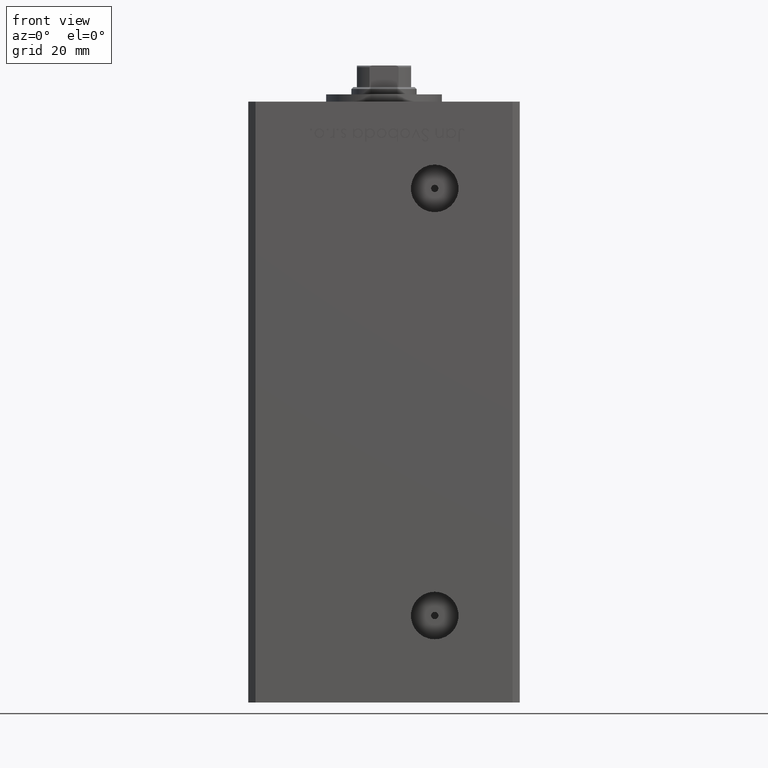
[diagram: clean part render]
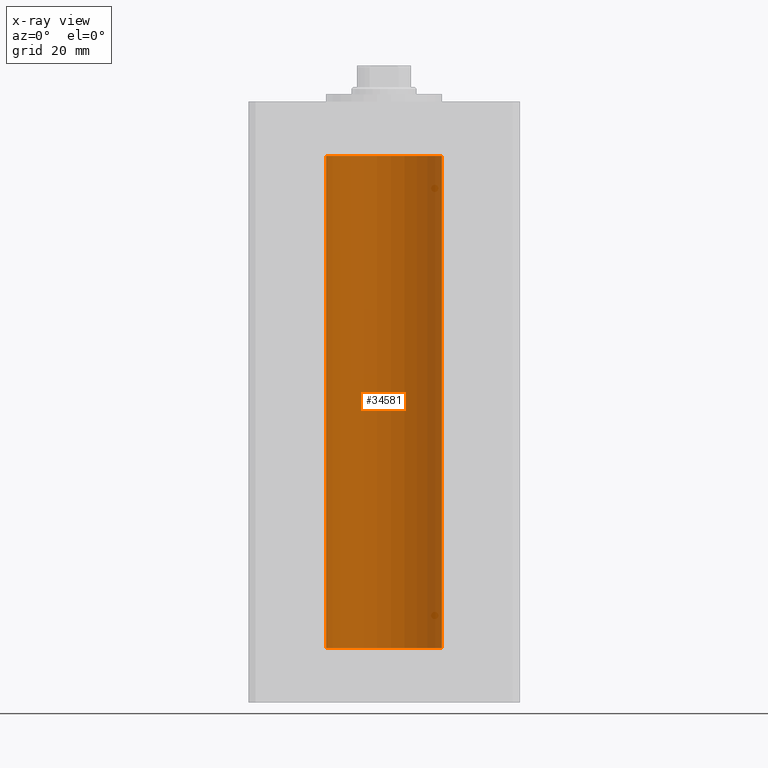
[diagram: x-ray — body ghosted, one internal face saturated and labeled with its STEP entity id]
A machine part, front view, then the same camera in x-ray: the body is ghosted and one INTERNAL B-rep face — a face not visible from any outside direction — is saturated and labeled: STEP entity #34581.
In plain terms, the highlighted cylindrical surface (partial cylindrical patch) has radius 16 mm, axis along (-0, -0, -1).
Its self-contained STEP definition (entity closure, byte-faithful):
#349 = FACE_OUTER_BOUND ( 'NONE', #45470, .T. ) ;
#838 = VERTEX_POINT ( 'NONE', #36487 ) ;
#3078 = LINE ( 'NONE', #26313, #14180 ) ;
#3507 = ORIENTED_EDGE ( 'NONE', *, *, #51479, .F. ) ;
#5869 = ORIENTED_EDGE ( 'NONE', *, *, #31103, .F. ) ;
#6196 = AXIS2_PLACEMENT_3D ( 'NONE', #30985, #48111, #44156 ) ;
#6739 = CARTESIAN_POINT ( 'NONE',  ( 16.00000000000000000, 1.959434878635765131E-15, 136.0000000000000000 ) ) ;
#7136 = CARTESIAN_POINT ( 'NONE',  ( -16.00000000000000000, 0.000000000000000000, 136.0000000000000000 ) ) ;
#9287 = EDGE_CURVE ( 'NONE', #838, #9871, #15310, .T. ) ;
#9871 = VERTEX_POINT ( 'NONE', #16985 ) ;
#12515 = ORIENTED_EDGE ( 'NONE', *, *, #9287, .T. ) ;
#14180 = VECTOR ( 'NONE', #46635, 1000.000000000000000 ) ;
#14366 = VERTEX_POINT ( 'NONE', #6739 ) ;
#15310 = LINE ( 'NONE', #7136, #47034 ) ;
#16985 = CARTESIAN_POINT ( 'NONE',  ( -16.00000000000000000, 0.000000000000000000, 0.000000000000000000 ) ) ;
#17214 = CYLINDRICAL_SURFACE ( 'NONE', #29489, 16.00000000000000000 ) ;
#18844 = CIRCLE ( 'NONE', #6196, 16.00000000000000000 ) ;
#19945 = AXIS2_PLACEMENT_3D ( 'NONE', #26936, #50699, #38045 ) ;
#20401 = DIRECTION ( 'NONE',  ( -1.000000000000000000, 0.000000000000000000, 0.000000000000000000 ) ) ;
#23001 = EDGE_CURVE ( 'NONE', #14366, #838, #52012, .T. ) ;
#26313 = CARTESIAN_POINT ( 'NONE',  ( 16.00000000000000000, 1.959434878635765131E-15, 136.0000000000000000 ) ) ;
#26936 = CARTESIAN_POINT ( 'NONE',  ( 0.000000000000000000, 0.000000000000000000, 136.0000000000000000 ) ) ;
#27647 = VERTEX_POINT ( 'NONE', #35946 ) ;
#28284 = ORIENTED_EDGE ( 'NONE', *, *, #23001, .T. ) ;
#29489 = AXIS2_PLACEMENT_3D ( 'NONE', #32544, #41249, #20401 ) ;
#30985 = CARTESIAN_POINT ( 'NONE',  ( 0.000000000000000000, 0.000000000000000000, 0.000000000000000000 ) ) ;
#31103 = EDGE_CURVE ( 'NONE', #14366, #27647, #3078, .T. ) ;
#31672 = DIRECTION ( 'NONE',  ( -0.000000000000000000, -0.000000000000000000, -1.000000000000000000 ) ) ;
#32544 = CARTESIAN_POINT ( 'NONE',  ( 0.000000000000000000, 0.000000000000000000, 136.0000000000000000 ) ) ;
#34581 = ADVANCED_FACE ( 'NONE', ( #349 ), #17214, .F. ) ;
#35946 = CARTESIAN_POINT ( 'NONE',  ( 16.00000000000000000, 1.959434878635765131E-15, 0.000000000000000000 ) ) ;
#36487 = CARTESIAN_POINT ( 'NONE',  ( -16.00000000000000000, 0.000000000000000000, 136.0000000000000000 ) ) ;
#38045 = DIRECTION ( 'NONE',  ( 1.000000000000000000, 0.000000000000000000, 0.000000000000000000 ) ) ;
#41249 = DIRECTION ( 'NONE',  ( -0.000000000000000000, -0.000000000000000000, -1.000000000000000000 ) ) ;
#44156 = DIRECTION ( 'NONE',  ( 1.000000000000000000, 0.000000000000000000, 0.000000000000000000 ) ) ;
#45470 = EDGE_LOOP ( 'NONE', ( #5869, #28284, #12515, #3507 ) ) ;
#46635 = DIRECTION ( 'NONE',  ( -0.000000000000000000, -0.000000000000000000, -1.000000000000000000 ) ) ;
#47034 = VECTOR ( 'NONE', #31672, 1000.000000000000000 ) ;
#48111 = DIRECTION ( 'NONE',  ( -0.000000000000000000, 0.000000000000000000, 1.000000000000000000 ) ) ;
#50699 = DIRECTION ( 'NONE',  ( -0.000000000000000000, 0.000000000000000000, 1.000000000000000000 ) ) ;
#51479 = EDGE_CURVE ( 'NONE', #27647, #9871, #18844, .T. ) ;
#52012 = CIRCLE ( 'NONE', #19945, 16.00000000000000000 ) ;